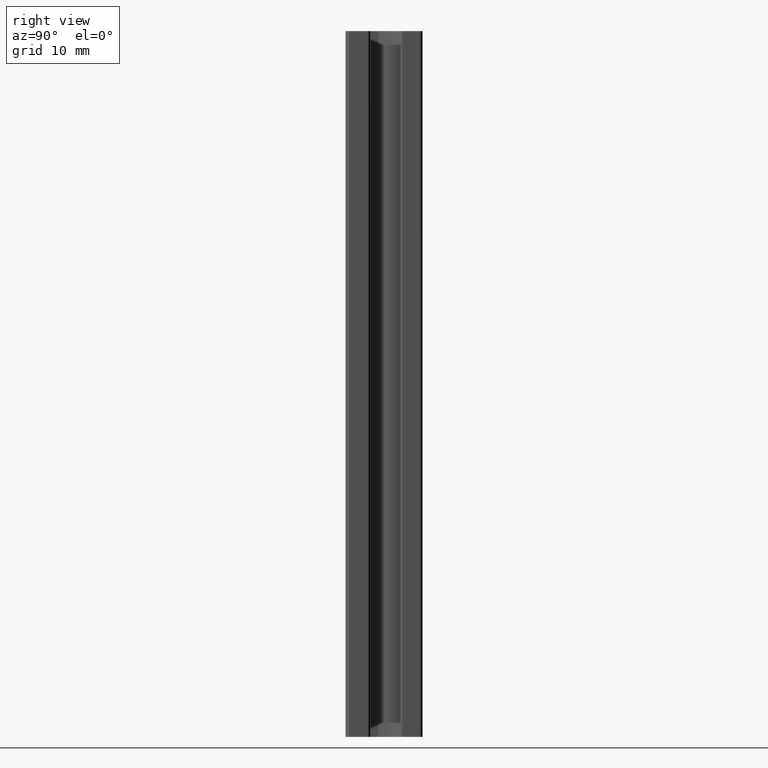
[diagram: clean part render]
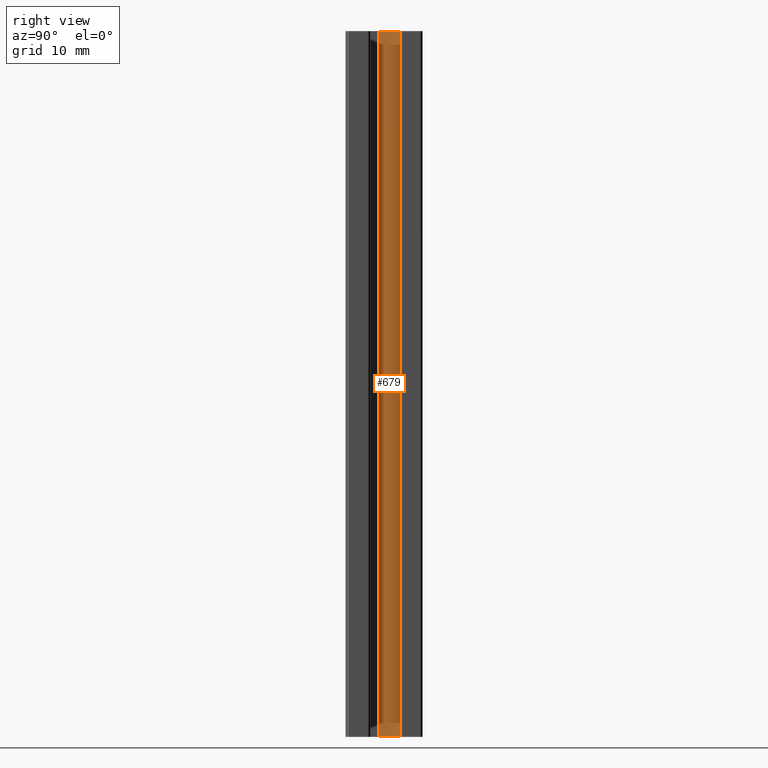
[diagram: same view with one face highlighted and labeled with its STEP entity id]
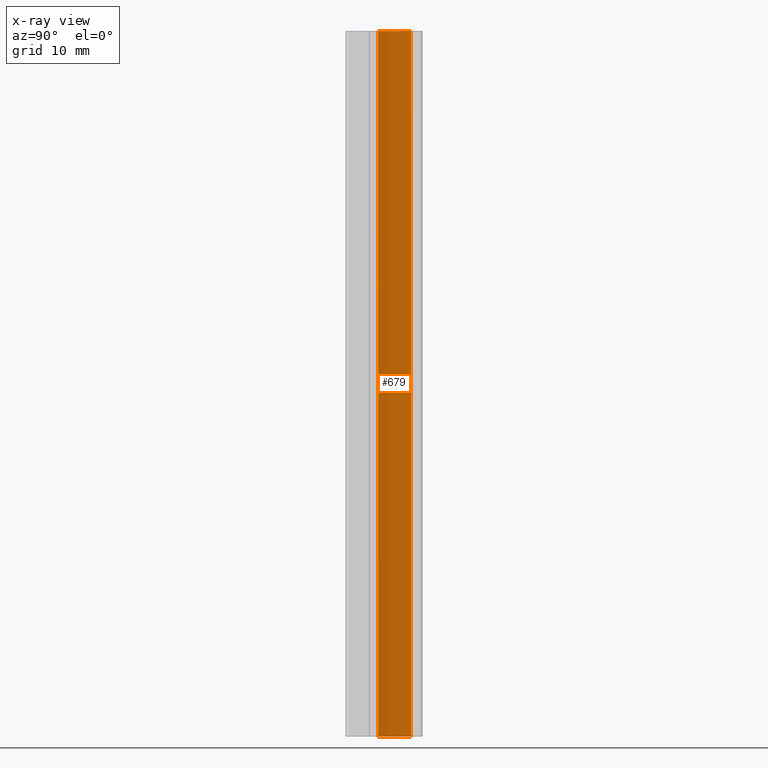
[diagram: x-ray of the same camera — body ghosted, the highlighted face saturated]
A machine part, right view. The second image highlights one B-rep face of the part: STEP entity #679.
The next image is the same camera in x-ray: the body ghosted, the highlighted face saturated — about 0% of this face is hidden behind the body in this view.
In plain terms, the highlighted cylindrical surface (partial cylindrical patch) has radius 7.2247 mm, axis along (0, 0, -1).
Its self-contained STEP definition (entity closure, byte-faithful):
#621=CARTESIAN_POINT('',(-9.195547831296153,4.626529070951960,0.0));
#622=VERTEX_POINT('',#621);
#629=CARTESIAN_POINT('',(-9.195547831296153,4.626529070951960,100.0));
#630=VERTEX_POINT('',#629);
#631=CARTESIAN_POINT('',(-9.195547831296153,4.626529070951960,0.0));
#632=DIRECTION('',(0.0,0.0,1.0));
#633=VECTOR('',#632,100.0);
#634=LINE('',#631,#633);
#635=EDGE_CURVE('',#622,#630,#634,.T.);
#647=CARTESIAN_POINT('',(-2.254513155987638,2.622113467691463,0.0));
#648=DIRECTION('',(0.0,0.0,-1.0));
#649=DIRECTION('',(-0.960742676624798,0.277441001497289,0.0));
#650=AXIS2_PLACEMENT_3D('',#647,#648,#649);
#651=CYLINDRICAL_SURFACE('',#650,7.224655304886772);
#652=CARTESIAN_POINT('',(-5.032598244687392,9.291287892938783,0.0));
#653=VERTEX_POINT('',#652);
#654=CARTESIAN_POINT('',(-2.254513155987638,2.622113467691463,0.0));
#655=DIRECTION('',(0.0,0.0,-1.0));
#656=DIRECTION('',(1.0,0.0,0.0));
#657=AXIS2_PLACEMENT_3D('',#654,#655,#656);
#658=CIRCLE('',#657,7.224655304886772);
#659=EDGE_CURVE('',#622,#653,#658,.T.);
#660=ORIENTED_EDGE('',*,*,#659,.T.);
#661=CARTESIAN_POINT('',(-5.032598244687392,9.291287892938783,100.0));
#662=VERTEX_POINT('',#661);
#663=CARTESIAN_POINT('',(-5.032598244687392,9.291287892938783,0.0));
#664=DIRECTION('',(0.0,0.0,1.0));
#665=VECTOR('',#664,100.0);
#666=LINE('',#663,#665);
#667=EDGE_CURVE('',#653,#662,#666,.T.);
#668=ORIENTED_EDGE('',*,*,#667,.T.);
#669=CARTESIAN_POINT('',(-2.254513155987638,2.622113467691463,100.0));
#670=DIRECTION('',(0.0,0.0,-1.0));
#671=DIRECTION('',(1.0,0.0,0.0));
#672=AXIS2_PLACEMENT_3D('',#669,#670,#671);
#673=CIRCLE('',#672,7.224655304886772);
#674=EDGE_CURVE('',#630,#662,#673,.T.);
#675=ORIENTED_EDGE('',*,*,#674,.F.);
#676=ORIENTED_EDGE('',*,*,#635,.F.);
#677=EDGE_LOOP('',(#660,#668,#675,#676));
#678=FACE_OUTER_BOUND('',#677,.T.);
#679=ADVANCED_FACE('',(#678),#651,.F.);